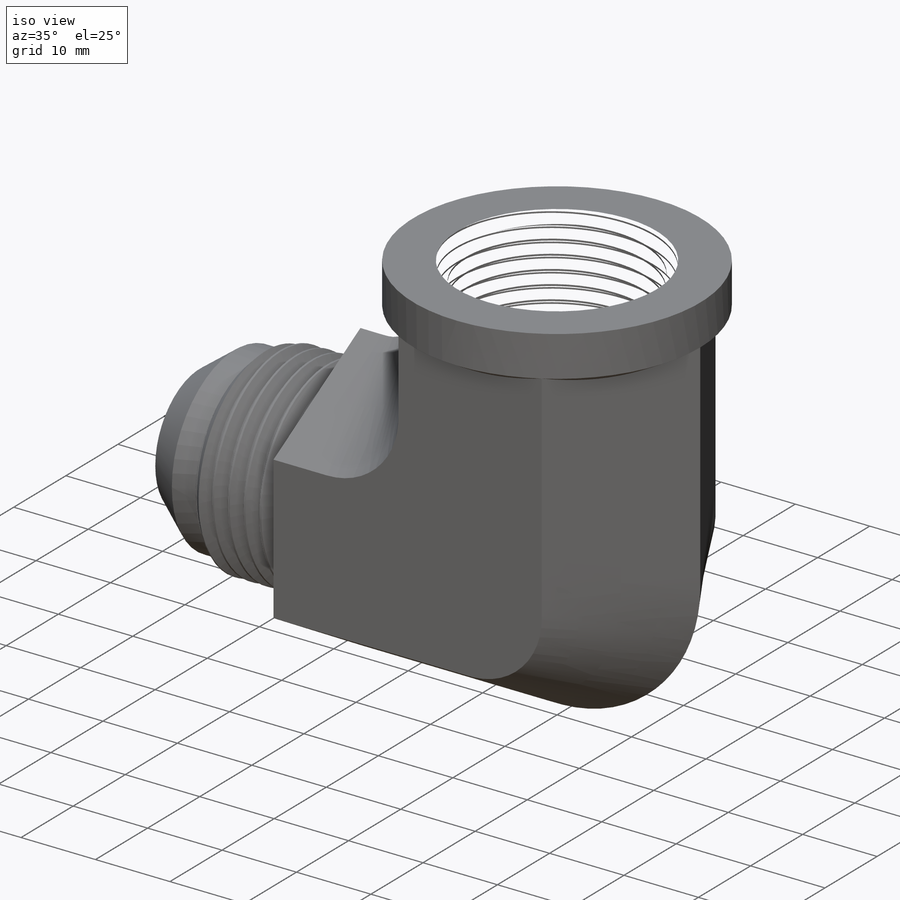
[diagram: iso view]
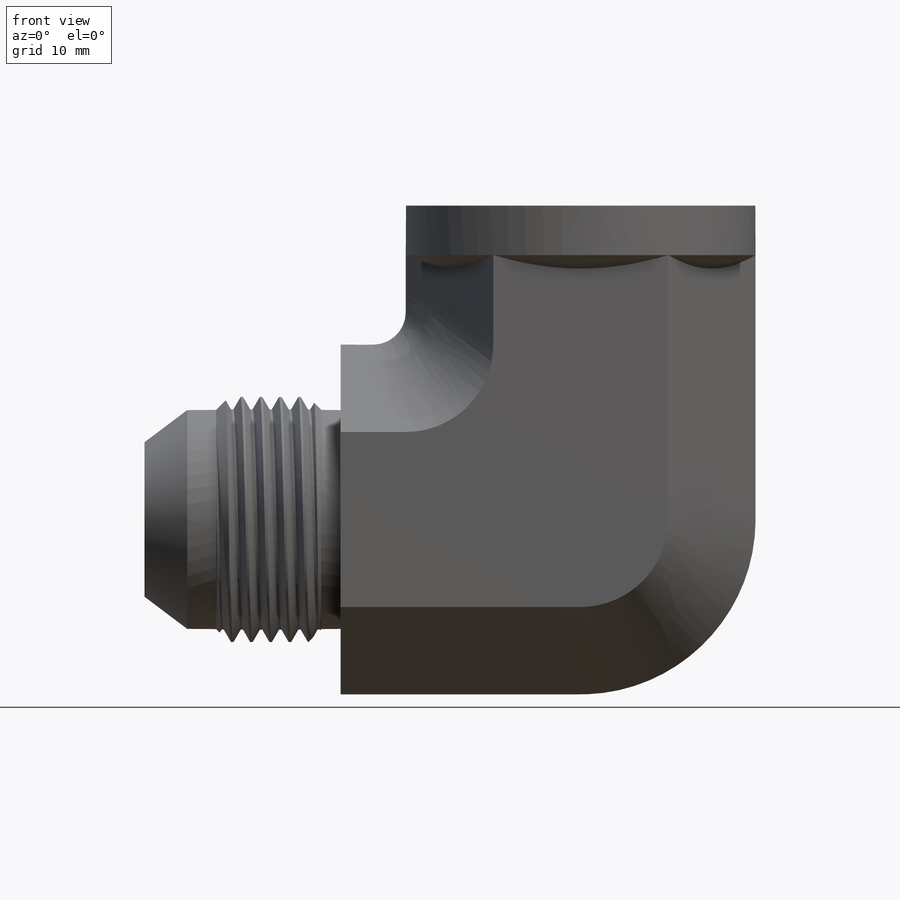
[diagram: front view]
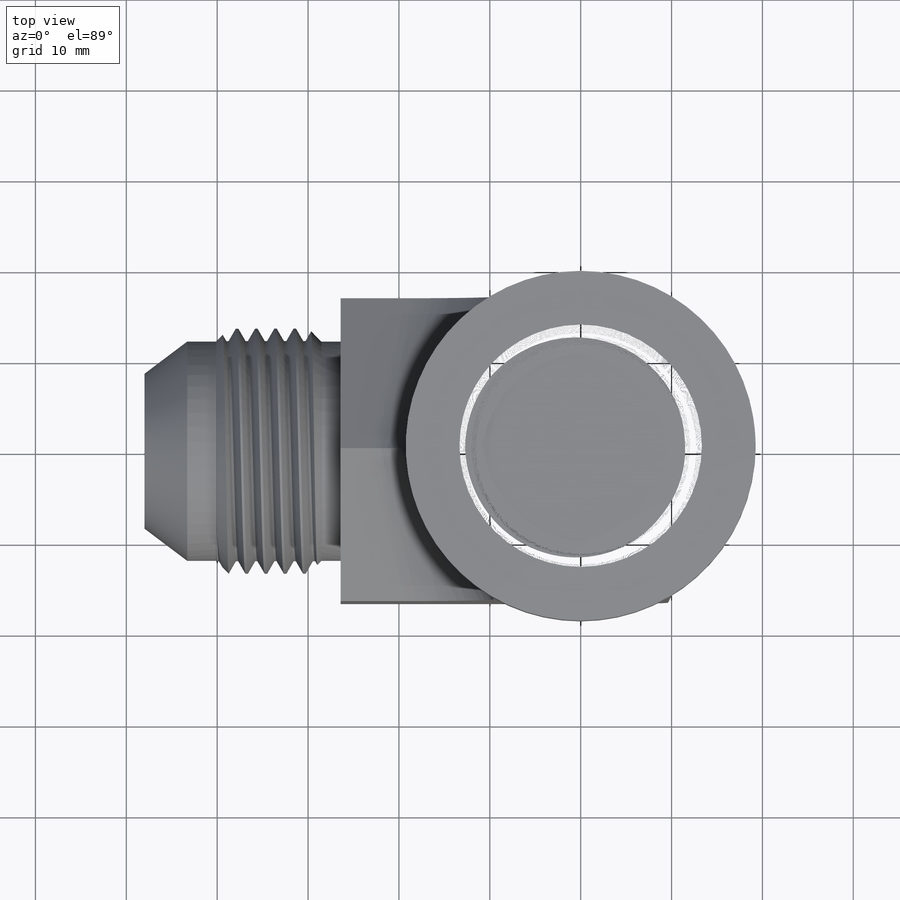
[diagram: top view]
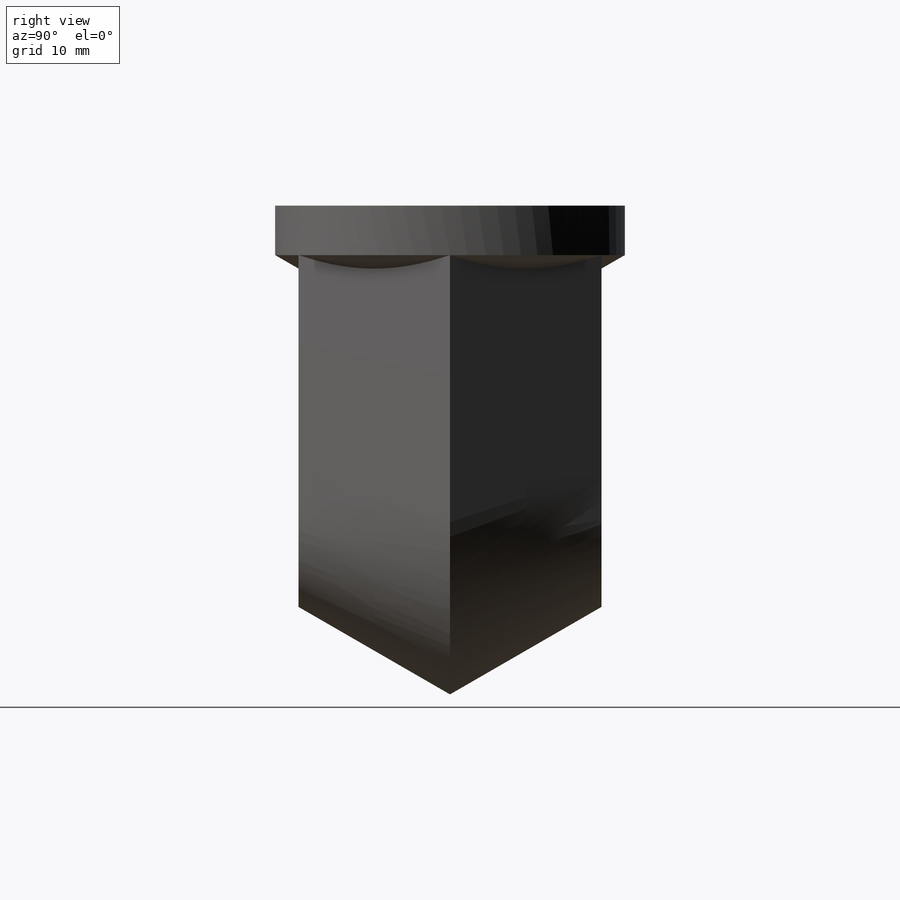
[diagram: right view]
SOLIDWORKS PART (.sldprt)
format: sldprt  version: not decoded by parser v0  size: 1,962,496 bytes
history: native  units: mm
features: sketch x20, plane x4, revolve x2, helix x2, sweep x2, extrude x2, boolean_combine x2, cut_extrude x2, material x1, cut_revolve x1 (+13 scaffold rows collapsed)
feature tree (51):
  scaffold x13  (default folders/planes/origin — collapsed)
  material  "Material <not specified>"
  sketch  "Sketch1"  dims[L1=34.544mm L=48.006mm]
  plane  "Plane1"
  plane  "Plane2"
  sketch  "Sketch3"  dims[L2=21.59mm Screw Dia=26.9875mm]
  revolve  "Revolve1"  Angle=360deg
  sketch  "Sketch26"  dims[D1=0.0mm]
  helix  "Helix/Spiral1"  Pitch=23.706667mm
  sketch  "Sketch27"  dims[c1.D1=~3.096431mm c2.D1=60.0deg c2.D2=~0.264583mm c2.D3=~1.058333mm]
  sweep  "Cut-Sweep2"
  sketch  "Sketch28"  dims[c1.D1=~2.116667mm c1.D2=0.0508mm c1.D3=~2.116667mm c2.D3=45.0deg c2.D4=~4.436304mm c3.D4=45.0deg c4.D4=~4.436304mm c5.D4=37.0deg c5.D5=3.175mm c5.D6=17.0434mm c5.D7=9.525mm]
  cut_revolve  "Cut-Revolve4"  Angle=360deg
  sketch  "Sketch4"  dims[c1.Pipe OD=26.67mm c1.Thread Length=20.1549mm c1.D1=~17.529308mm c2.D1=1.79deg c2.D2=~3.574893mm c3.D2=60.0deg c3.Thread Pitch=~2.208696mm c3.D3=~0.084201mm c3.D1=25.0063mm c4.D1=1.78deg]
  revolve  "Revolve2"  Angle=360deg
  sketch  "Sketch30"  dims[D1=0.0mm]
  helix  "Helix/Spiral2"  Pitch=21.969186mm
  sketch  "Sketch29"  dims[Pitch=~1.814286mm D1=~0.226786mm]
  sweep  "Cut-Sweep3"
  sketch  "Sketch8"  dims[Hex=41.275mm D1=33.3375mm]
  sketch  "Sketch9"  dims[Hex=33.3375mm]
  sketch  "Sketch10"  dims[D1=4.7625mm]
  sketch  "Sketch11"  dims[D1=15.875mm]
  plane  "Plane3"
  plane  "Plane4"
  sketch  "Sketch21"
  sketch  "Sketch22"
  sketch  "Sketch23"
  sketch  "Sketch24"
  sketch  "Sketch31"
  extrude  "Boss-Extrude1"  Depth=5.442857mm
  sketch  "Sketch32"
  extrude  "Boss-Extrude2"  [1 undecoded]
  boolean_combine  "Combine1"
  sketch  "Sketch33"
  cut_extrude  "Cut-Extrude1"  [1 undecoded]
  boolean_combine  "Combine2"
  sketch  "Sketch13"  dims[ID=15.494mm]
  cut_extrude  "Cut-Extrude2"  [1 undecoded]
decode coverage: 19 of 33 modeling features carry decoded parameters
note: ~ marks probable driven/reference dimensions
note: 3 parameter values undecoded
summary: no parameter record found for 3 features
note: suppression state not decoded; provenance and decode notes live in map.json
